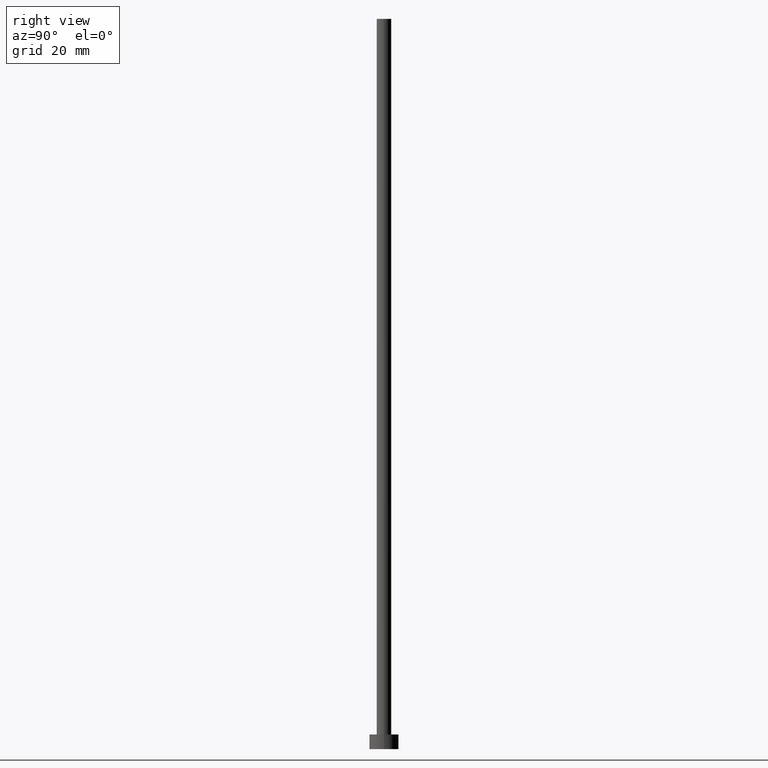
[diagram: clean part render]
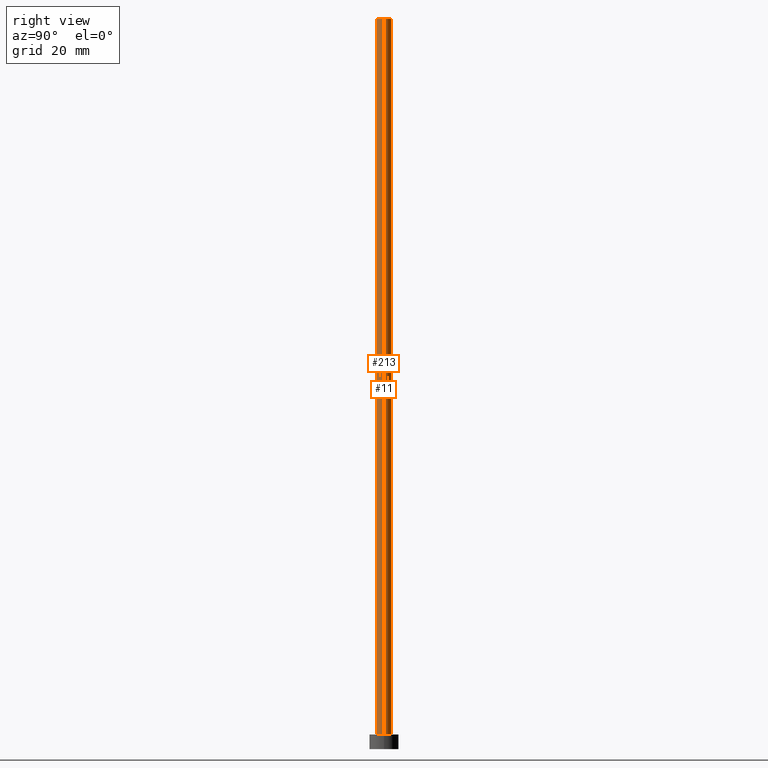
[diagram: same view with one multi-face feature highlighted, each face labeled with its STEP entity id]
A machine part, right view. The highlighted faces form ONE feature: a constant-radius fillet chain: 2 tangent blend faces with common blend radius 2 mm. The faces share edges in the B-rep.
Their STEP definitions:
[1] entity #11 (Cylinder):
#5 = AXIS2_PLACEMENT_3D ( 'NONE', #55, #9, #242 ) ;
#6 = DIRECTION ( 'NONE',  ( 1.000000000000000000, 0.000000000000000000, 0.000000000000000000 ) ) ;
#9 = DIRECTION ( 'NONE',  ( 0.000000000000000000, 0.000000000000000000, 1.000000000000000000 ) ) ;
#10 = DIRECTION ( 'NONE',  ( -0.000000000000000000, -0.000000000000000000, -1.000000000000000000 ) ) ;
#11 = ADVANCED_FACE ( 'NONE', ( #74 ), #157, .T. ) ;
#17 = CARTESIAN_POINT ( 'NONE',  ( -2.000000000000000000, 0.000000000000000000, 200.0000000000000000 ) ) ;
#23 = CARTESIAN_POINT ( 'NONE',  ( 2.000000000000000000, 2.449293598294706414E-16, 4.000000000000000000 ) ) ;
#26 = VECTOR ( 'NONE', #190, 1000.000000000000000 ) ;
#32 = CARTESIAN_POINT ( 'NONE',  ( 2.000000000000000000, 2.449293598294706414E-16, 200.0000000000000000 ) ) ;
#33 = EDGE_CURVE ( 'NONE', #179, #254, #69, .T. ) ;
#35 = VERTEX_POINT ( 'NONE', #122 ) ;
#38 = EDGE_CURVE ( 'NONE', #178, #35, #255, .T. ) ;
#42 = LINE ( 'NONE', #204, #161 ) ;
#50 = ORIENTED_EDGE ( 'NONE', *, *, #38, .T. ) ;
#55 = CARTESIAN_POINT ( 'NONE',  ( 0.000000000000000000, 0.000000000000000000, 200.0000000000000000 ) ) ;
#69 = CIRCLE ( 'NONE', #5, 2.000000000000000000 ) ;
#74 = FACE_OUTER_BOUND ( 'NONE', #96, .T. ) ;
#84 = DIRECTION ( 'NONE',  ( -1.000000000000000000, 0.000000000000000000, 0.000000000000000000 ) ) ;
#96 = EDGE_LOOP ( 'NONE', ( #198, #232, #50, #119 ) ) ;
#119 = ORIENTED_EDGE ( 'NONE', *, *, #251, .F. ) ;
#122 = CARTESIAN_POINT ( 'NONE',  ( -2.000000000000000000, 0.000000000000000000, 4.000000000000000000 ) ) ;
#123 = DIRECTION ( 'NONE',  ( 0.000000000000000000, 0.000000000000000000, 1.000000000000000000 ) ) ;
#129 = DIRECTION ( 'NONE',  ( -0.000000000000000000, -0.000000000000000000, -1.000000000000000000 ) ) ;
#147 = LINE ( 'NONE', #32, #26 ) ;
#157 = CYLINDRICAL_SURFACE ( 'NONE', #199, 2.000000000000000000 ) ;
#161 = VECTOR ( 'NONE', #129, 1000.000000000000000 ) ;
#162 = CARTESIAN_POINT ( 'NONE',  ( 2.000000000000000000, 2.449293598294706414E-16, 200.0000000000000000 ) ) ;
#176 = AXIS2_PLACEMENT_3D ( 'NONE', #200, #123, #6 ) ;
#178 = VERTEX_POINT ( 'NONE', #23 ) ;
#179 = VERTEX_POINT ( 'NONE', #162 ) ;
#190 = DIRECTION ( 'NONE',  ( -0.000000000000000000, -0.000000000000000000, -1.000000000000000000 ) ) ;
#198 = ORIENTED_EDGE ( 'NONE', *, *, #33, .F. ) ;
#199 = AXIS2_PLACEMENT_3D ( 'NONE', #237, #10, #84 ) ;
#200 = CARTESIAN_POINT ( 'NONE',  ( 0.000000000000000000, 0.000000000000000000, 4.000000000000000000 ) ) ;
#201 = EDGE_CURVE ( 'NONE', #179, #178, #147, .T. ) ;
#204 = CARTESIAN_POINT ( 'NONE',  ( -2.000000000000000000, 0.000000000000000000, 200.0000000000000000 ) ) ;
#232 = ORIENTED_EDGE ( 'NONE', *, *, #201, .T. ) ;
#237 = CARTESIAN_POINT ( 'NONE',  ( 0.000000000000000000, 0.000000000000000000, 200.0000000000000000 ) ) ;
#242 = DIRECTION ( 'NONE',  ( 1.000000000000000000, 0.000000000000000000, 0.000000000000000000 ) ) ;
#251 = EDGE_CURVE ( 'NONE', #254, #35, #42, .T. ) ;
#254 = VERTEX_POINT ( 'NONE', #17 ) ;
#255 = CIRCLE ( 'NONE', #176, 2.000000000000000000 ) ;
[2] entity #213 (Cylinder):
#16 = CARTESIAN_POINT ( 'NONE',  ( 0.000000000000000000, 0.000000000000000000, 4.000000000000000000 ) ) ;
#17 = CARTESIAN_POINT ( 'NONE',  ( -2.000000000000000000, 0.000000000000000000, 200.0000000000000000 ) ) ;
#23 = CARTESIAN_POINT ( 'NONE',  ( 2.000000000000000000, 2.449293598294706414E-16, 4.000000000000000000 ) ) ;
#26 = VECTOR ( 'NONE', #190, 1000.000000000000000 ) ;
#27 = DIRECTION ( 'NONE',  ( 0.000000000000000000, 0.000000000000000000, 1.000000000000000000 ) ) ;
#32 = CARTESIAN_POINT ( 'NONE',  ( 2.000000000000000000, 2.449293598294706414E-16, 200.0000000000000000 ) ) ;
#35 = VERTEX_POINT ( 'NONE', #122 ) ;
#42 = LINE ( 'NONE', #204, #161 ) ;
#44 = DIRECTION ( 'NONE',  ( 0.000000000000000000, 0.000000000000000000, 1.000000000000000000 ) ) ;
#52 = EDGE_CURVE ( 'NONE', #254, #179, #216, .T. ) ;
#71 = AXIS2_PLACEMENT_3D ( 'NONE', #16, #44, #130 ) ;
#75 = AXIS2_PLACEMENT_3D ( 'NONE', #236, #27, #186 ) ;
#87 = CYLINDRICAL_SURFACE ( 'NONE', #93, 2.000000000000000000 ) ;
#89 = DIRECTION ( 'NONE',  ( -0.000000000000000000, -0.000000000000000000, -1.000000000000000000 ) ) ;
#93 = AXIS2_PLACEMENT_3D ( 'NONE', #215, #89, #127 ) ;
#94 = ORIENTED_EDGE ( 'NONE', *, *, #52, .F. ) ;
#114 = CIRCLE ( 'NONE', #71, 2.000000000000000000 ) ;
#122 = CARTESIAN_POINT ( 'NONE',  ( -2.000000000000000000, 0.000000000000000000, 4.000000000000000000 ) ) ;
#127 = DIRECTION ( 'NONE',  ( -1.000000000000000000, 0.000000000000000000, 0.000000000000000000 ) ) ;
#129 = DIRECTION ( 'NONE',  ( -0.000000000000000000, -0.000000000000000000, -1.000000000000000000 ) ) ;
#130 = DIRECTION ( 'NONE',  ( 1.000000000000000000, 0.000000000000000000, 0.000000000000000000 ) ) ;
#147 = LINE ( 'NONE', #32, #26 ) ;
#152 = ORIENTED_EDGE ( 'NONE', *, *, #251, .T. ) ;
#155 = EDGE_LOOP ( 'NONE', ( #195, #94, #152, #174 ) ) ;
#161 = VECTOR ( 'NONE', #129, 1000.000000000000000 ) ;
#162 = CARTESIAN_POINT ( 'NONE',  ( 2.000000000000000000, 2.449293598294706414E-16, 200.0000000000000000 ) ) ;
#174 = ORIENTED_EDGE ( 'NONE', *, *, #240, .T. ) ;
#178 = VERTEX_POINT ( 'NONE', #23 ) ;
#179 = VERTEX_POINT ( 'NONE', #162 ) ;
#186 = DIRECTION ( 'NONE',  ( 1.000000000000000000, 0.000000000000000000, 0.000000000000000000 ) ) ;
#190 = DIRECTION ( 'NONE',  ( -0.000000000000000000, -0.000000000000000000, -1.000000000000000000 ) ) ;
#195 = ORIENTED_EDGE ( 'NONE', *, *, #201, .F. ) ;
#201 = EDGE_CURVE ( 'NONE', #179, #178, #147, .T. ) ;
#204 = CARTESIAN_POINT ( 'NONE',  ( -2.000000000000000000, 0.000000000000000000, 200.0000000000000000 ) ) ;
#213 = ADVANCED_FACE ( 'NONE', ( #220 ), #87, .T. ) ;
#215 = CARTESIAN_POINT ( 'NONE',  ( 0.000000000000000000, 0.000000000000000000, 200.0000000000000000 ) ) ;
#216 = CIRCLE ( 'NONE', #75, 2.000000000000000000 ) ;
#220 = FACE_OUTER_BOUND ( 'NONE', #155, .T. ) ;
#236 = CARTESIAN_POINT ( 'NONE',  ( 0.000000000000000000, 0.000000000000000000, 200.0000000000000000 ) ) ;
#240 = EDGE_CURVE ( 'NONE', #35, #178, #114, .T. ) ;
#251 = EDGE_CURVE ( 'NONE', #254, #35, #42, .T. ) ;
#254 = VERTEX_POINT ( 'NONE', #17 ) ;